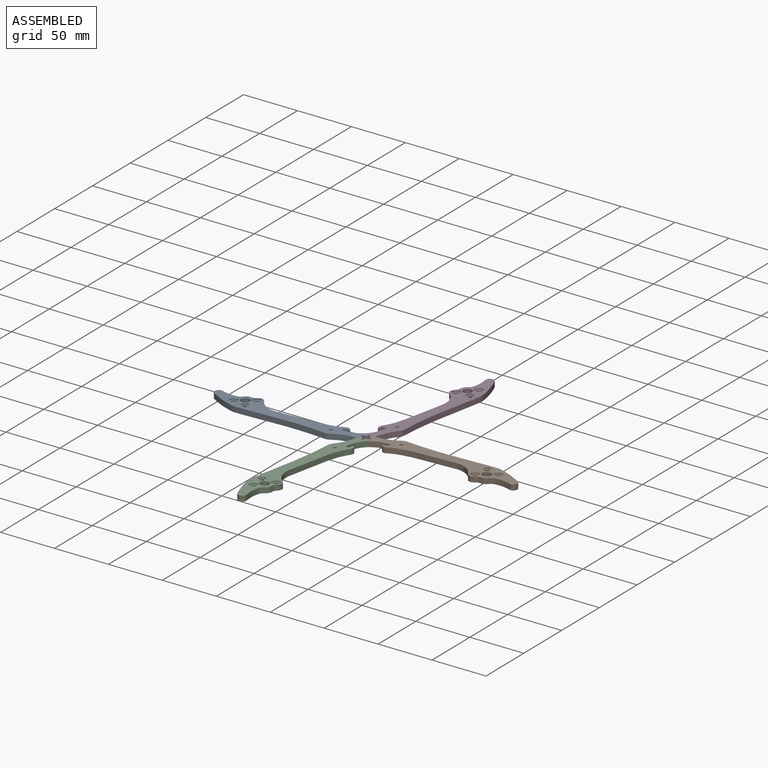
[diagram: assembled view]
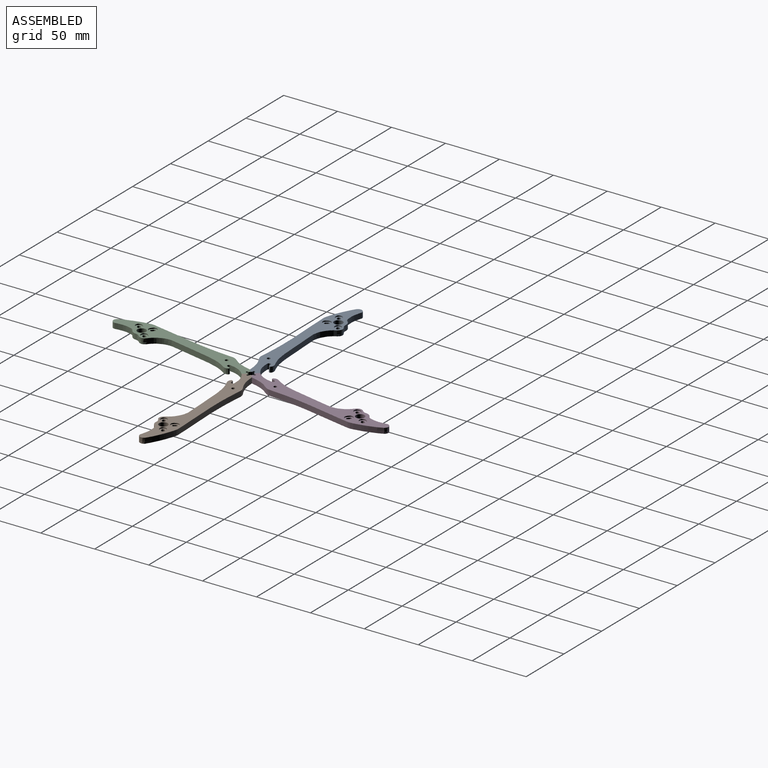
[diagram: assembled view, second angle]
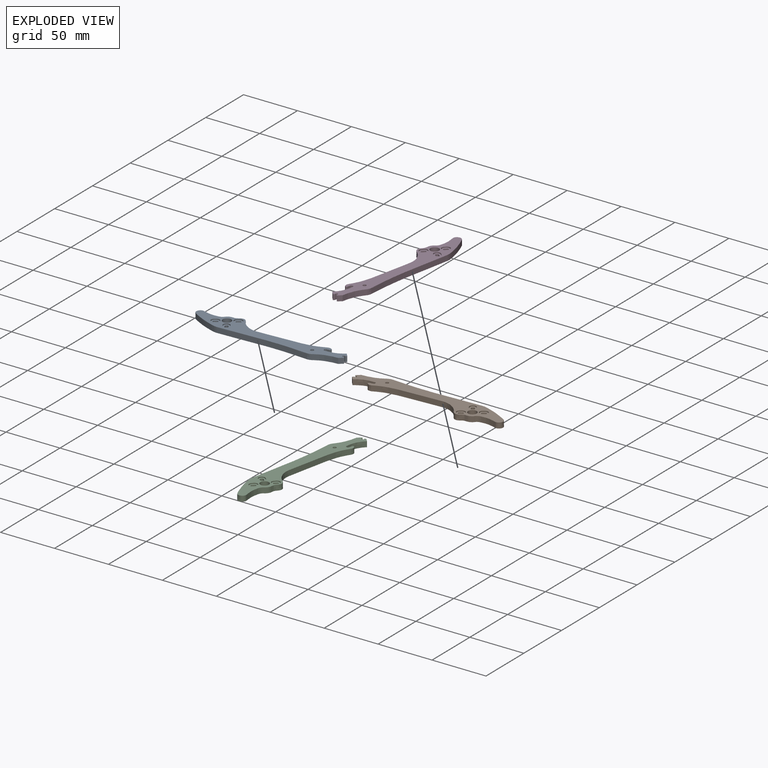
[diagram: exploded view]
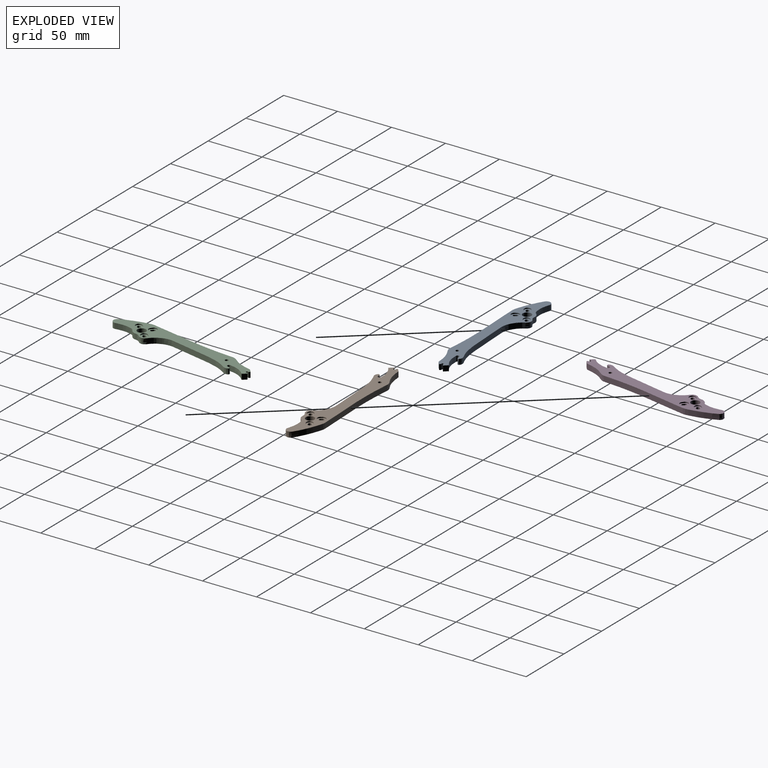
[diagram: exploded view, second angle]
ASSEMBLY  parts=4 mates=3
PART A: 39 faces, bbox 140.3x23.7x5 mm
  f0: plane 4x1.26mm, normal (-0.54,0.84,0), area 6mm2, adj f1,f11,f23,f38
  f1: cylinder r=1.5mm len=4mm, axis (0,0,-1), area 18.8mm2, adj f0,f2,f23,f38
  f2: plane 4x1.26mm, normal (0.54,-0.84,0), area 6mm2, adj f1,f11,f23,f38
  f3: plane 4x1.26mm, normal (-0.84,-0.54,0), area 6mm2, adj f4,f9,f23,f33
  f4: cylinder r=1.5mm len=4mm, axis (0,0,-1), area 18.8mm2, adj f3,f5,f23,f33
  f5: plane 4x1.26mm, normal (0.84,0.54,0), area 6mm2, adj f4,f9,f23,f33
  f6: plane 4x1.26mm, normal (-0.54,0.84,0), area 6mm2, adj f7,f10,f23,f28
  f7: cylinder r=1.5mm len=4mm, axis (0,0,-1), area 18.8mm2, adj f6,f8,f23,f28
  f8: plane 4x1.26mm, normal (0.54,-0.84,0), area 6mm2, adj f7,f10,f23,f28
  f9: cylinder r=1.5mm len=4mm, axis (0,0,-1), area 18.8mm2, adj f3,f5,f23,f33
  f10: cylinder r=1.5mm len=4mm, axis (0,0,-1), area 18.8mm2, adj f6,f8,f23,f28
  f11: cylinder r=1.5mm len=4mm, axis (0,0,-1), area 18.8mm2, adj f0,f2,f23,f38
  f12: plane 5x3.34mm, normal (-0.65,0.76,0), area 22mm2, adj f13,f19,f22,f23
  f13: plane 5x1.23mm, normal (-0.76,-0.65,0), area 8.1mm2, adj f12,f14,f22,f23
  f14: cylinder r=1mm len=5mm, axis (0,0,-1), area 23.5mm2, adj f13,f15,f22,f23
  f15: plane 5x1.36mm, normal (-0.66,0.75,0), area 9mm2, adj f14,f16,f22,f23
  f16: plane 5x3.4mm, normal (-0.76,-0.65,0), area 22.4mm2, adj f15,f17,f22,f23
  f17: extruded ~16.75x5.26mm, area 89.7mm2, adj f16,f18,f22,f23
  f18: cylinder r=1.5mm len=5mm, axis (0,0,-1), area 24.1mm2, adj f17,f19,f22,f23
  f19: extruded ~136.11x23.31mm, area 1370.3mm2, adj f12,f18,f22,f23
  f20: cylinder r=4mm len=8mm, axis (0,0,-1), area 125.7mm2, adj f22,f23
  f21: cylinder r=1.5mm len=5mm, axis (0,0,-1), area 47.1mm2, adj f22,f23
  f22: plane 140.34x23.72mm, normal (0,0,1), area 1636.7mm2, adj f12,f13,f14,f15,f16,f17,f18,f19
  f23: plane 140.34x23.72mm, normal (0,0,-1), area 1713.9mm2, adj f0,f1,f2,f3,f4,f5,f6,f7
  f24: plane 1.26x1mm, normal (0.54,-0.84,0), area 1.5mm2, adj f22,f25,f27,f28
  f25: cylinder r=3mm len=5.52mm, axis (0,0,1), area 9.4mm2, adj f22,f24,f26,f28
  f26: plane 1.26x1mm, normal (-0.54,0.84,0), area 1.5mm2, adj f22,f25,f27,f28
  f27: cylinder r=3mm len=5.52mm, axis (0,0,1), area 9.4mm2, adj f22,f24,f26,f28
  f28: plane 7.26x6.81mm, normal (0,0,1), area 25.7mm2, adj f6,f7,f8,f10,f24,f25,f26,f27
  f29: plane 1.26x1mm, normal (0.84,0.54,0), area 1.5mm2, adj f22,f30,f32,f33
  f30: cylinder r=3mm len=5.52mm, axis (0,0,1), area 9.4mm2, adj f22,f29,f31,f33
  f31: plane 1.26x1mm, normal (-0.84,-0.54,0), area 1.5mm2, adj f22,f30,f32,f33
  f32: cylinder r=3mm len=5.52mm, axis (0,0,1), area 9.4mm2, adj f22,f29,f31,f33
  f33: plane 7.26x6.81mm, normal (0,0,1), area 25.7mm2, adj f3,f4,f5,f9,f29,f30,f31,f32
  f34: plane 1.26x1mm, normal (-0.54,0.84,0), area 1.5mm2, adj f22,f35,f37,f38
  f35: cylinder r=3mm len=5.52mm, axis (0,0,1), area 9.4mm2, adj f22,f34,f36,f38
  f36: plane 1.26x1mm, normal (0.54,-0.84,0), area 1.5mm2, adj f22,f35,f37,f38
  f37: cylinder r=3mm len=5.52mm, axis (0,0,1), area 9.4mm2, adj f22,f34,f36,f38
  f38: plane 7.26x6.81mm, normal (0,0,1), area 25.7mm2, adj f0,f1,f2,f11,f34,f35,f36,f37
PART B: same geometry as A
PART C: 39 faces, bbox 140.3x23.7x5 mm
  f0: plane 4x1.26mm, normal (-0.54,-0.84,0), area 6mm2, adj f1,f11,f23,f38
  f1: cylinder r=1.5mm len=4mm, axis (0,0,-1), area 18.8mm2, adj f0,f2,f23,f38
  f2: plane 4x1.26mm, normal (0.54,0.84,0), area 6mm2, adj f1,f11,f23,f38
  f3: plane 4x1.26mm, normal (-0.84,0.54,0), area 6mm2, adj f4,f9,f23,f33
  f4: cylinder r=1.5mm len=4mm, axis (0,0,-1), area 18.8mm2, adj f3,f5,f23,f33
  f5: plane 4x1.26mm, normal (0.84,-0.54,0), area 6mm2, adj f4,f9,f23,f33
  f6: plane 4x1.26mm, normal (-0.54,-0.84,0), area 6mm2, adj f7,f10,f23,f28
  f7: cylinder r=1.5mm len=4mm, axis (0,0,-1), area 18.8mm2, adj f6,f8,f23,f28
  f8: plane 4x1.26mm, normal (0.54,0.84,0), area 6mm2, adj f7,f10,f23,f28
  f9: cylinder r=1.5mm len=4mm, axis (0,0,-1), area 18.8mm2, adj f3,f5,f23,f33
  f10: cylinder r=1.5mm len=4mm, axis (0,0,-1), area 18.8mm2, adj f6,f8,f23,f28
  f11: cylinder r=1.5mm len=4mm, axis (0,0,-1), area 18.8mm2, adj f0,f2,f23,f38
  f12: plane 5x3.34mm, normal (-0.65,-0.76,0), area 22mm2, adj f13,f19,f22,f23
  f13: plane 5x1.23mm, normal (-0.76,0.65,0), area 8.1mm2, adj f12,f14,f22,f23
  f14: cylinder r=1mm len=5mm, axis (0,0,-1), area 23.5mm2, adj f13,f15,f22,f23
  f15: plane 5x1.36mm, normal (-0.66,-0.75,0), area 9mm2, adj f14,f16,f22,f23
  f16: plane 5x3.4mm, normal (-0.76,0.65,0), area 22.4mm2, adj f15,f17,f22,f23
  f17: extruded ~16.75x5.26mm, area 89.7mm2, adj f16,f18,f22,f23
  f18: cylinder r=1.5mm len=5mm, axis (0,0,-1), area 24.1mm2, adj f17,f19,f22,f23
  f19: extruded ~136.11x23.31mm, area 1370.3mm2, adj f12,f18,f22,f23
  f20: cylinder r=4mm len=8mm, axis (0,0,-1), area 125.7mm2, adj f22,f23
  f21: cylinder r=1.5mm len=5mm, axis (0,0,-1), area 47.1mm2, adj f22,f23
  f22: plane 140.34x23.72mm, normal (0,0,1), area 1636.7mm2, adj f12,f13,f14,f15,f16,f17,f18,f19
  f23: plane 140.34x23.72mm, normal (0,0,-1), area 1713.9mm2, adj f0,f1,f2,f3,f4,f5,f6,f7
  f24: plane 1.26x1mm, normal (0.54,0.84,0), area 1.5mm2, adj f22,f25,f27,f28
  f25: cylinder r=3mm len=5.52mm, axis (0,0,1), area 9.4mm2, adj f22,f24,f26,f28
  f26: plane 1.26x1mm, normal (-0.54,-0.84,0), area 1.5mm2, adj f22,f25,f27,f28
  f27: cylinder r=3mm len=5.52mm, axis (0,0,1), area 9.4mm2, adj f22,f24,f26,f28
  f28: plane 7.26x6.81mm, normal (0,0,1), area 25.7mm2, adj f6,f7,f8,f10,f24,f25,f26,f27
  f29: plane 1.26x1mm, normal (0.84,-0.54,0), area 1.5mm2, adj f22,f30,f32,f33
  f30: cylinder r=3mm len=5.52mm, axis (0,0,1), area 9.4mm2, adj f22,f29,f31,f33
  f31: plane 1.26x1mm, normal (-0.84,0.54,0), area 1.5mm2, adj f22,f30,f32,f33
  f32: cylinder r=3mm len=5.52mm, axis (0,0,1), area 9.4mm2, adj f22,f29,f31,f33
  f33: plane 7.26x6.81mm, normal (0,0,1), area 25.7mm2, adj f3,f4,f5,f9,f29,f30,f31,f32
  f34: plane 1.26x1mm, normal (-0.54,-0.84,0), area 1.5mm2, adj f22,f35,f37,f38
  f35: cylinder r=3mm len=5.52mm, axis (0,0,1), area 9.4mm2, adj f22,f34,f36,f38
  f36: plane 1.26x1mm, normal (0.54,0.84,0), area 1.5mm2, adj f22,f35,f37,f38
  f37: cylinder r=3mm len=5.52mm, axis (0,0,1), area 9.4mm2, adj f22,f34,f36,f38
  f38: plane 7.26x6.81mm, normal (0,0,1), area 25.7mm2, adj f0,f1,f2,f11,f34,f35,f36,f37
PART D: same geometry as C
PLACE A rot(axis=(0,0,1),180deg) t=(-252.93,-86.71,-3.1)mm
PLACE B t=(-61.33,-53.65,-3.1)mm
PLACE C rot(axis=(0,0,-1),98.8deg) t=(-188.17,-162.31,-3.1)mm
PLACE D rot(axis=(0,0,1),81.2deg) t=(-126.09,21.95,-3.1)mm
MATE fastened C.f12 <-> A.f12  axis (-0.65,0.76,0) through (-160.93,-73.43,-0.6)mm
MATE fastened D.f12 <-> B.f12  axis (0.65,-0.76,0) through (-153.33,-66.93,-0.6)mm
MATE fastened C.f16 <-> B.f16  axis (0.76,0.65,0) through (-153.95,-73.89,-0.6)mm
